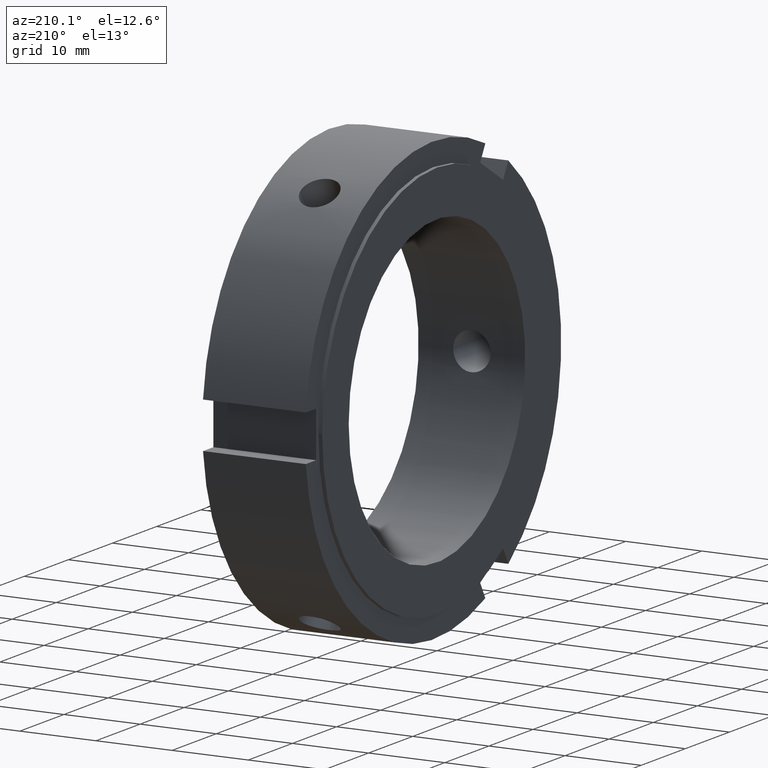
[diagram: clean part render]
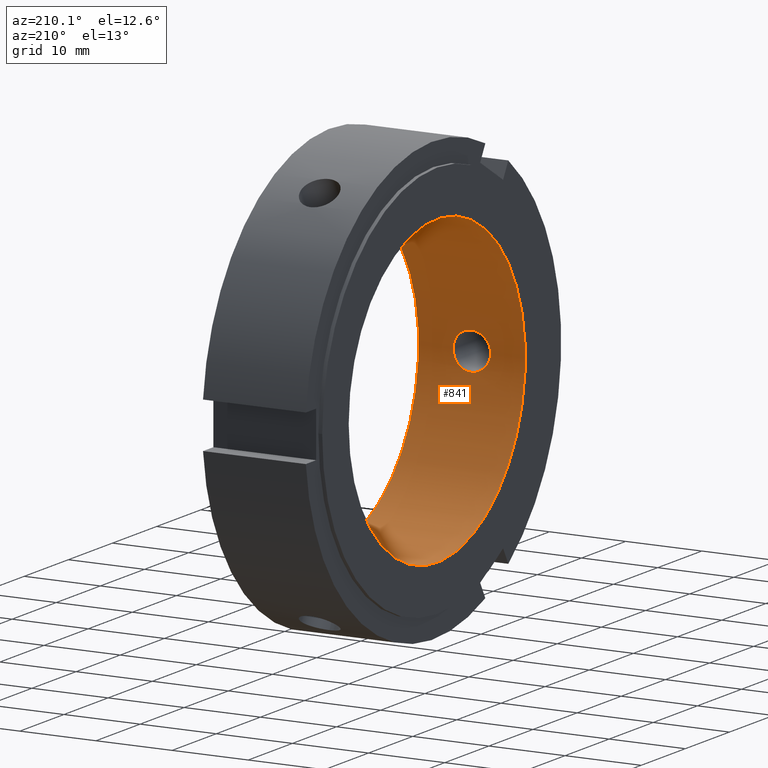
[diagram: same view with one face highlighted and labeled with its STEP entity id]
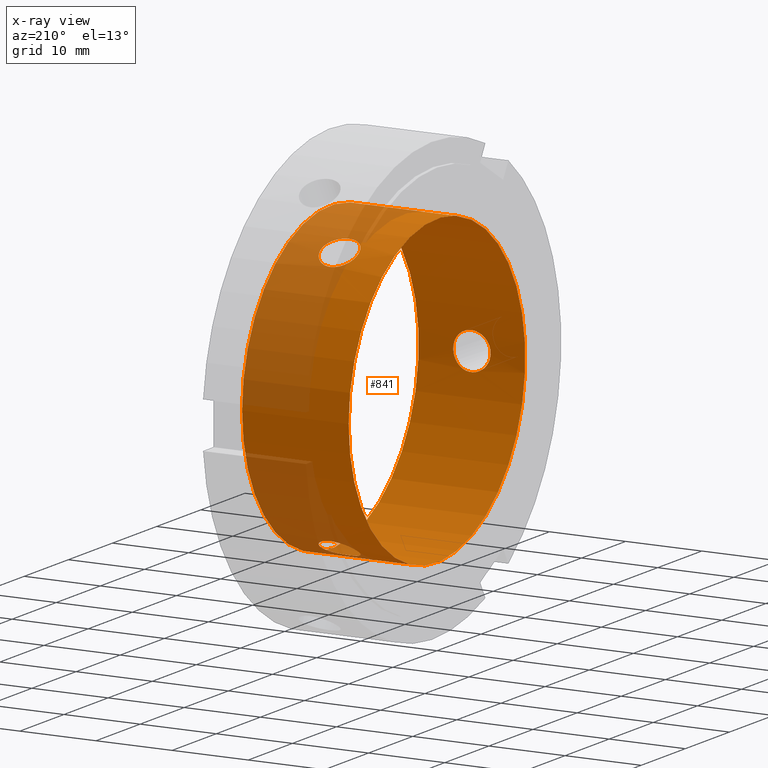
[diagram: x-ray of the same camera — body ghosted, the highlighted face saturated]
A machine part, auxiliary view. The second image highlights one B-rep face of the part: STEP entity #841.
The next image is the same camera in x-ray: the body ghosted, the highlighted face saturated — about 28% of this face is hidden behind the body in this view.
In plain terms, the highlighted cylindrical surface (bore or boss wall) has radius 20 mm, axis along (1, 0, 0).
Its self-contained STEP definition (entity closure, byte-faithful):
#216=CARTESIAN_POINT('',(6.999999999999994,12.053283089021921,15.959898708196686));
#217=VERTEX_POINT('',#216);
#218=CARTESIAN_POINT('',(6.999999999999995,12.053283089021916,15.959898708196686));
#219=CARTESIAN_POINT('',(6.690968271254704,12.053283089021916,15.959898708196686));
#220=CARTESIAN_POINT('',(6.361553815856706,12.003722752344197,15.997705947766910));
#221=CARTESIAN_POINT('',(5.755924004486799,11.800698361727441,16.148048599668137));
#222=CARTESIAN_POINT('',(5.479681708979354,11.647038071503006,16.260210193384989));
#223=CARTESIAN_POINT('',(5.043475951151598,11.288302570213933,16.511273594329129));
#224=CARTESIAN_POINT('',(4.854320105292359,11.059187832783078,16.666921301230648));
#225=CARTESIAN_POINT('',(4.603323519938373,10.548962118054192,16.994449076431216));
#226=CARTESIAN_POINT('',(4.541499999999993,10.267627237686163,17.165993417968185));
#227=CARTESIAN_POINT('',(4.541499999999995,9.732372762313844,17.475022733409347));
#228=CARTESIAN_POINT('',(4.603323519938373,9.443143564483341,17.632893716010230));
#229=CARTESIAN_POINT('',(4.854320105292357,8.904383333350213,17.910998259029231));
#230=CARTESIAN_POINT('',(5.043475951151601,8.655031096417281,18.031593588574996));
#231=CARTESIAN_POINT('',(5.479681708979353,8.258236062594600,18.216735945458606));
#232=CARTESIAN_POINT('',(5.755924004486794,8.084271127994633,18.293728863487431));
#233=CARTESIAN_POINT('',(6.361553815856701,7.852558376867471,18.394381817398781));
#234=CARTESIAN_POINT('',(6.690968271254702,7.795036178613833,18.418398708196683));
#235=CARTESIAN_POINT('',(7.309031728745286,7.795036178613833,18.418398708196683));
#236=CARTESIAN_POINT('',(7.638446184143284,7.852558376867470,18.394381817398781));
#237=CARTESIAN_POINT('',(8.244075995513191,8.084271127994633,18.293728863487431));
#238=CARTESIAN_POINT('',(8.520318291020635,8.258236062594600,18.216735945458606));
#239=CARTESIAN_POINT('',(8.956524048848387,8.655031096417281,18.031593588574996));
#240=CARTESIAN_POINT('',(9.145679894707632,8.904383333350213,17.910998259029231));
#241=CARTESIAN_POINT('',(9.396676480061615,9.443143564483341,17.632893716010230));
#242=CARTESIAN_POINT('',(9.458499999999994,9.732372762313844,17.475022733409347));
#243=CARTESIAN_POINT('',(9.458499999999994,10.267627237686163,17.165993417968185));
#244=CARTESIAN_POINT('',(9.396676480061617,10.548962118054190,16.994449076431216));
#245=CARTESIAN_POINT('',(9.145679894707630,11.059187832783078,16.666921301230651));
#246=CARTESIAN_POINT('',(8.956524048848388,11.288302570213933,16.511273594329133));
#247=CARTESIAN_POINT('',(8.520318291020633,11.647038071503006,16.260210193384989));
#248=CARTESIAN_POINT('',(8.244075995513189,11.800698361727445,16.148048599668133));
#249=CARTESIAN_POINT('',(7.638446184143280,12.003722752344197,15.997705947766907));
#250=CARTESIAN_POINT('',(7.309031728745286,12.053283089021917,15.959898708196684));
#251=CARTESIAN_POINT('',(6.999999999999995,12.053283089021917,15.959898708196684));
#252=B_SPLINE_CURVE_WITH_KNOTS('',3,(#218,#219,#220,#221,#222,#223,#224,#225,#226,#227,#228,#229,#230,#231,#232,#233,#234,#235,#236,#237,#238,#239,#240,#241,#242,#243,#244,#245,#246,#247,#248,#249,#250,#251),.UNSPECIFIED.,.T.,.U.,(4,2,2,2,2,2,2,2,2,2,2,2,2,2,2,2,4),(0.0,0.092709518623587,0.185419037247175,0.278127831879523,0.370836626511872,0.463545421144219,0.556254215776567,0.648963734400154,0.741673253023742,0.834382771647329,0.927092290270916,1.019801084903264,1.112509879535611,1.205218674167960,1.297927468800308,1.390636987423896,1.483346506047483),.UNSPECIFIED.);
#253=EDGE_CURVE('',#217,#217,#252,.T.);
#406=CARTESIAN_POINT('',(6.999999999999994,7.795036178613822,-18.418398708196694));
#407=VERTEX_POINT('',#406);
#408=CARTESIAN_POINT('',(6.999999999999994,7.795036178613817,-18.418398708196694));
#409=CARTESIAN_POINT('',(6.690968271254702,7.795036178613817,-18.418398708196694));
#410=CARTESIAN_POINT('',(6.361553815856703,7.852558376867456,-18.394381817398788));
#411=CARTESIAN_POINT('',(5.755924004486797,8.084271127994617,-18.293728863487438));
#412=CARTESIAN_POINT('',(5.479681708979354,8.258236062594582,-18.216735945458616));
#413=CARTESIAN_POINT('',(5.043475951151599,8.655031096417263,-18.031593588575006));
#414=CARTESIAN_POINT('',(4.854320105292358,8.904383333350197,-17.910998259029242));
#415=CARTESIAN_POINT('',(4.603323519938374,9.443143564483329,-17.632893716010237));
#416=CARTESIAN_POINT('',(4.541499999999994,9.732372762313835,-17.475022733409354));
#417=CARTESIAN_POINT('',(4.541499999999994,10.267627237686154,-17.165993417968195));
#418=CARTESIAN_POINT('',(4.603323519938373,10.548962118054179,-16.994449076431220));
#419=CARTESIAN_POINT('',(4.854320105292361,11.059187832783063,-16.666921301230651));
#420=CARTESIAN_POINT('',(5.043475951151598,11.288302570213919,-16.511273594329133));
#421=CARTESIAN_POINT('',(5.479681708979354,11.647038071502990,-16.260210193384989));
#422=CARTESIAN_POINT('',(5.755924004486799,11.800698361727429,-16.148048599668144));
#423=CARTESIAN_POINT('',(6.361553815856704,12.003722752344180,-15.997705947766915));
#424=CARTESIAN_POINT('',(6.690968271254704,12.053283089021907,-15.959898708196686));
#425=CARTESIAN_POINT('',(7.309031728745285,12.053283089021908,-15.959898708196690));
#426=CARTESIAN_POINT('',(7.638446184143282,12.003722752344180,-15.997705947766915));
#427=CARTESIAN_POINT('',(8.244075995513189,11.800698361727429,-16.148048599668144));
#428=CARTESIAN_POINT('',(8.520318291020633,11.647038071502994,-16.260210193384992));
#429=CARTESIAN_POINT('',(8.956524048848388,11.288302570213919,-16.511273594329133));
#430=CARTESIAN_POINT('',(9.145679894707628,11.059187832783067,-16.666921301230659));
#431=CARTESIAN_POINT('',(9.396676480061615,10.548962118054179,-16.994449076431223));
#432=CARTESIAN_POINT('',(9.458499999999994,10.267627237686156,-17.165993417968195));
#433=CARTESIAN_POINT('',(9.458499999999994,9.732372762313835,-17.475022733409354));
#434=CARTESIAN_POINT('',(9.396676480061615,9.443143564483329,-17.632893716010237));
#435=CARTESIAN_POINT('',(9.145679894707632,8.904383333350197,-17.910998259029242));
#436=CARTESIAN_POINT('',(8.956524048848388,8.655031096417263,-18.031593588575006));
#437=CARTESIAN_POINT('',(8.520318291020635,8.258236062594582,-18.216735945458616));
#438=CARTESIAN_POINT('',(8.244075995513192,8.084271127994619,-18.293728863487434));
#439=CARTESIAN_POINT('',(7.638446184143286,7.852558376867456,-18.394381817398788));
#440=CARTESIAN_POINT('',(7.309031728745286,7.795036178613817,-18.418398708196694));
#441=CARTESIAN_POINT('',(6.999999999999995,7.795036178613817,-18.418398708196694));
#442=B_SPLINE_CURVE_WITH_KNOTS('',3,(#408,#409,#410,#411,#412,#413,#414,#415,#416,#417,#418,#419,#420,#421,#422,#423,#424,#425,#426,#427,#428,#429,#430,#431,#432,#433,#434,#435,#436,#437,#438,#439,#440,#441),.UNSPECIFIED.,.T.,.U.,(4,2,2,2,2,2,2,2,2,2,2,2,2,2,2,2,4),(0.0,0.092709518623587,0.185419037247174,0.278127831879523,0.370836626511871,0.463545421144219,0.556254215776568,0.648963734400155,0.741673253023742,0.834382771647329,0.927092290270916,1.019801084903265,1.112509879535613,1.205218674167962,1.297927468800310,1.390636987423897,1.483346506047484),.UNSPECIFIED.);
#443=EDGE_CURVE('',#407,#407,#442,.T.);
#508=CARTESIAN_POINT('',(13.999999999999995,20.0,0.0));
#509=VERTEX_POINT('',#508);
#510=CARTESIAN_POINT('',(13.999999999999995,0.0,0.0));
#511=DIRECTION('',(1.0,0.0,0.0));
#512=DIRECTION('',(0.0,1.0,0.0));
#513=AXIS2_PLACEMENT_3D('',#510,#511,#512);
#514=CIRCLE('',#513,20.0);
#515=EDGE_CURVE('',#509,#509,#514,.T.);
#643=CARTESIAN_POINT('',(6.999999999999994,-19.848319267635738,2.458500000000000));
#644=VERTEX_POINT('',#643);
#645=CARTESIAN_POINT('',(6.999999999999994,-19.848319267635738,2.458500000000000));
#646=CARTESIAN_POINT('',(6.690968271254704,-19.848319267635738,2.458500000000000));
#647=CARTESIAN_POINT('',(6.361553815856703,-19.856281129211652,2.396675869631872));
#648=CARTESIAN_POINT('',(5.755924004486797,-19.884969489722057,2.145680263819294));
#649=CARTESIAN_POINT('',(5.479681708979354,-19.905274134097589,1.956525752073613));
#650=CARTESIAN_POINT('',(5.043475951151599,-19.943333666631201,1.520319994245860));
#651=CARTESIAN_POINT('',(4.854320105292358,-19.963571166133274,1.244076957798581));
#652=CARTESIAN_POINT('',(4.603323519938372,-19.992105682537520,0.638444639579012));
#653=CARTESIAN_POINT('',(4.541499999999994,-20.0,0.309029315441160));
#654=CARTESIAN_POINT('',(4.541499999999994,-20.0,-0.309029315441160));
#655=CARTESIAN_POINT('',(4.603323519938372,-19.992105682537520,-0.638444639579012));
#656=CARTESIAN_POINT('',(4.854320105292358,-19.963571166133274,-1.244076957798581));
#657=CARTESIAN_POINT('',(5.043475951151599,-19.943333666631201,-1.520319994245860));
#658=CARTESIAN_POINT('',(5.479681708979354,-19.905274134097589,-1.956525752073613));
#659=CARTESIAN_POINT('',(5.755924004486795,-19.884969489722057,-2.145680263819294));
#660=CARTESIAN_POINT('',(6.361553815856702,-19.856281129211652,-2.396675869631872));
#661=CARTESIAN_POINT('',(6.690968271254704,-19.848319267635738,-2.458500000000000));
#662=CARTESIAN_POINT('',(7.309031728745284,-19.848319267635738,-2.458500000000000));
#663=CARTESIAN_POINT('',(7.638446184143286,-19.856281129211652,-2.396675869631872));
#664=CARTESIAN_POINT('',(8.244075995513192,-19.884969489722057,-2.145680263819294));
#665=CARTESIAN_POINT('',(8.520318291020635,-19.905274134097589,-1.956525752073613));
#666=CARTESIAN_POINT('',(8.956524048848387,-19.943333666631197,-1.520319994245860));
#667=CARTESIAN_POINT('',(9.145679894707632,-19.963571166133274,-1.244076957798582));
#668=CARTESIAN_POINT('',(9.396676480061617,-19.992105682537520,-0.638444639579013));
#669=CARTESIAN_POINT('',(9.458499999999994,-20.0,-0.309029315441161));
#670=CARTESIAN_POINT('',(9.458499999999994,-20.0,0.309029315441160));
#671=CARTESIAN_POINT('',(9.396676480061615,-19.992105682537520,0.638444639579013));
#672=CARTESIAN_POINT('',(9.145679894707632,-19.963571166133274,1.244076957798581));
#673=CARTESIAN_POINT('',(8.956524048848388,-19.943333666631201,1.520319994245860));
#674=CARTESIAN_POINT('',(8.520318291020635,-19.905274134097589,1.956525752073613));
#675=CARTESIAN_POINT('',(8.244075995513192,-19.884969489722057,2.145680263819294));
#676=CARTESIAN_POINT('',(7.638446184143285,-19.856281129211652,2.396675869631872));
#677=CARTESIAN_POINT('',(7.309031728745286,-19.848319267635738,2.458500000000000));
#678=CARTESIAN_POINT('',(6.999999999999995,-19.848319267635738,2.458500000000000));
#679=B_SPLINE_CURVE_WITH_KNOTS('',3,(#645,#646,#647,#648,#649,#650,#651,#652,#653,#654,#655,#656,#657,#658,#659,#660,#661,#662,#663,#664,#665,#666,#667,#668,#669,#670,#671,#672,#673,#674,#675,#676,#677,#678),.UNSPECIFIED.,.T.,.U.,(4,2,2,2,2,2,2,2,2,2,2,2,2,2,2,2,4),(0.0,0.092709518623587,0.185419037247174,0.278127831879522,0.370836626511870,0.463545421144218,0.556254215776567,0.648963734400154,0.741673253023741,0.834382771647328,0.927092290270915,1.019801084903263,1.112509879535611,1.205218674167960,1.297927468800308,1.390636987423895,1.483346506047482),.UNSPECIFIED.);
#680=EDGE_CURVE('',#644,#644,#679,.T.);
#766=CARTESIAN_POINT('',(-5.229409E-015,20.0,0.0));
#767=VERTEX_POINT('',#766);
#768=CARTESIAN_POINT('',(-5.230191E-015,0.0,0.0));
#769=DIRECTION('',(1.0,0.0,0.0));
#770=DIRECTION('',(0.0,1.0,0.0));
#771=AXIS2_PLACEMENT_3D('',#768,#769,#770);
#772=CIRCLE('',#771,20.0);
#773=EDGE_CURVE('',#767,#767,#772,.T.);
#821=CARTESIAN_POINT('',(6.999999999999995,0.0,0.0));
#822=DIRECTION('',(1.0,0.0,0.0));
#823=DIRECTION('',(0.0,1.0,0.0));
#824=AXIS2_PLACEMENT_3D('',#821,#822,#823);
#825=CYLINDRICAL_SURFACE('',#824,20.0);
#826=ORIENTED_EDGE('',*,*,#773,.F.);
#827=EDGE_LOOP('',(#826));
#828=FACE_OUTER_BOUND('',#827,.T.);
#829=ORIENTED_EDGE('',*,*,#253,.T.);
#830=EDGE_LOOP('',(#829));
#831=FACE_BOUND('',#830,.T.);
#832=ORIENTED_EDGE('',*,*,#443,.T.);
#833=EDGE_LOOP('',(#832));
#834=FACE_BOUND('',#833,.T.);
#835=ORIENTED_EDGE('',*,*,#680,.T.);
#836=EDGE_LOOP('',(#835));
#837=FACE_BOUND('',#836,.T.);
#838=ORIENTED_EDGE('',*,*,#515,.T.);
#839=EDGE_LOOP('',(#838));
#840=FACE_BOUND('',#839,.T.);
#841=ADVANCED_FACE('',(#828,#831,#834,#837,#840),#825,.F.);